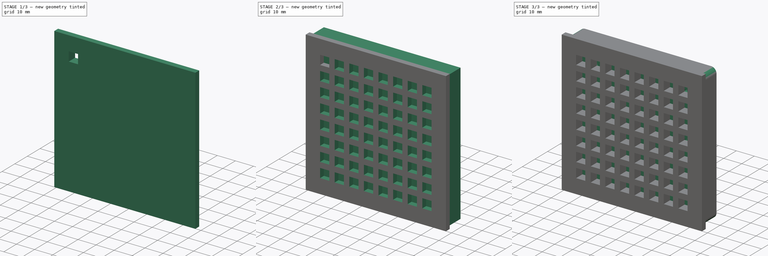
[diagram: build sequence overview — one tinted view per stage of 3, left to right]
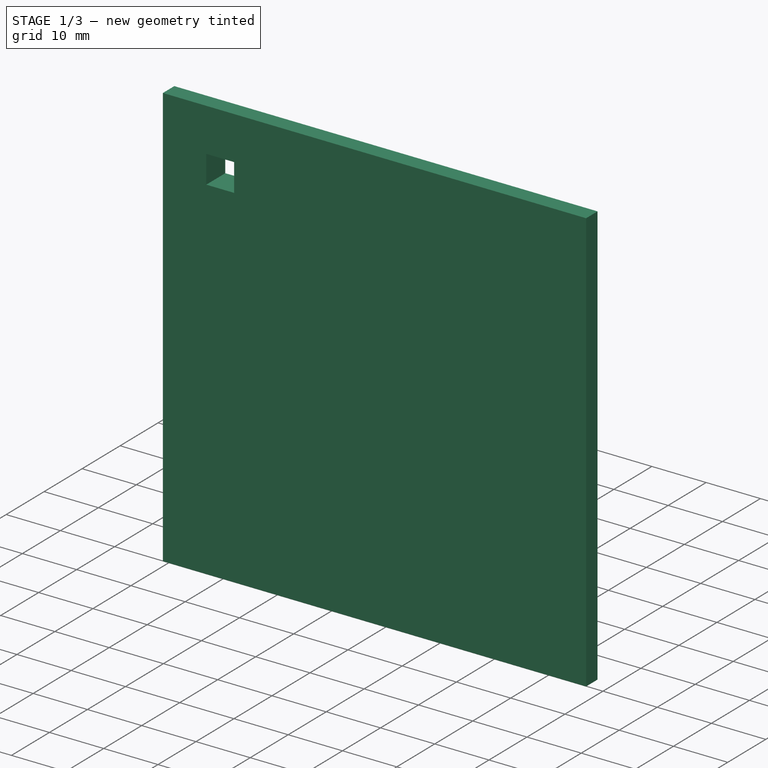
[diagram: stage 1 of 3 — iso view after this stage's code; geometry added in this stage tinted green]
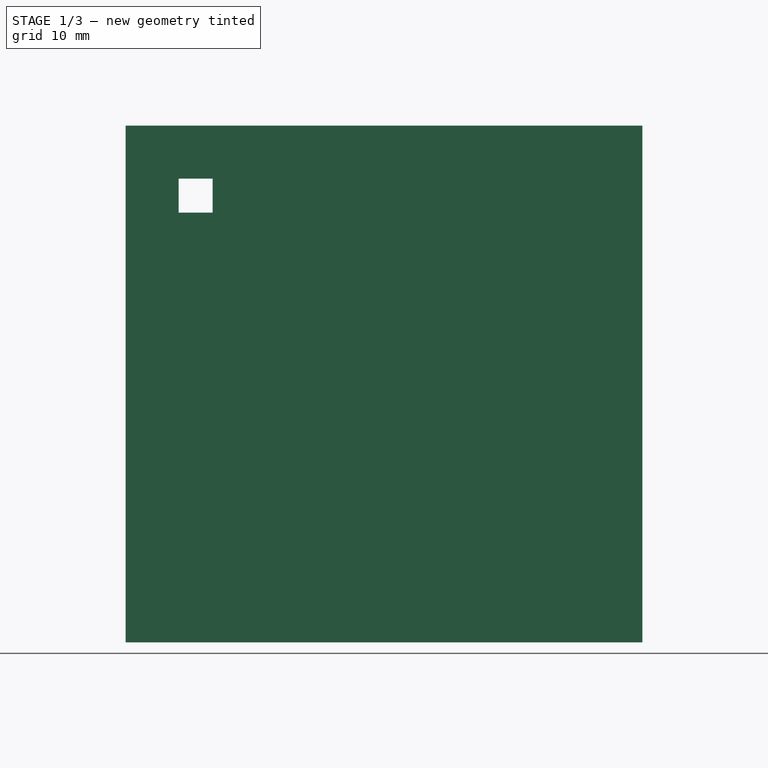
[diagram: stage 1 of 3 — front view after this stage's code; geometry added in this stage tinted green]
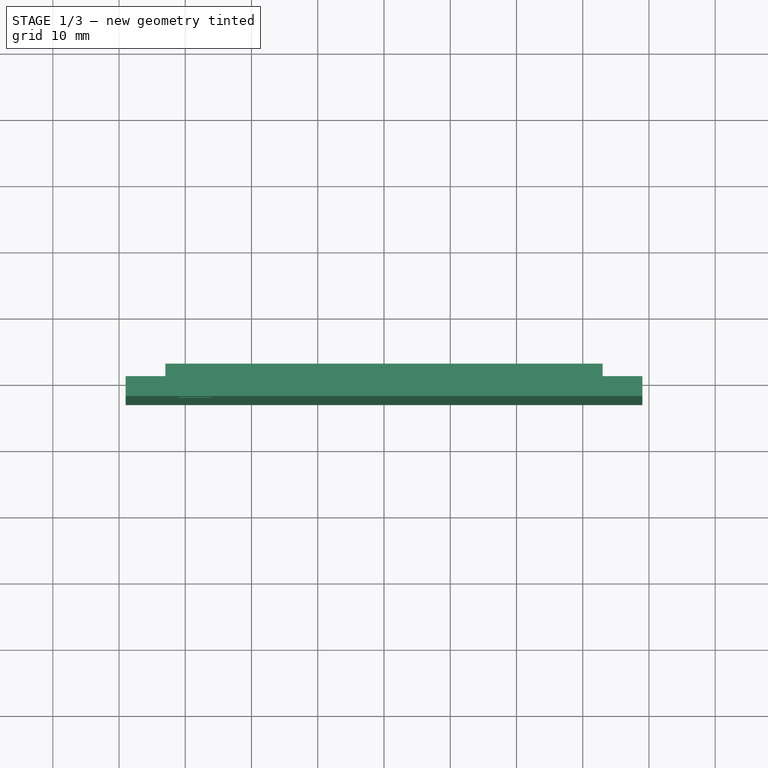
[diagram: stage 1 of 3 — top view after this stage's code; geometry added in this stage tinted green]
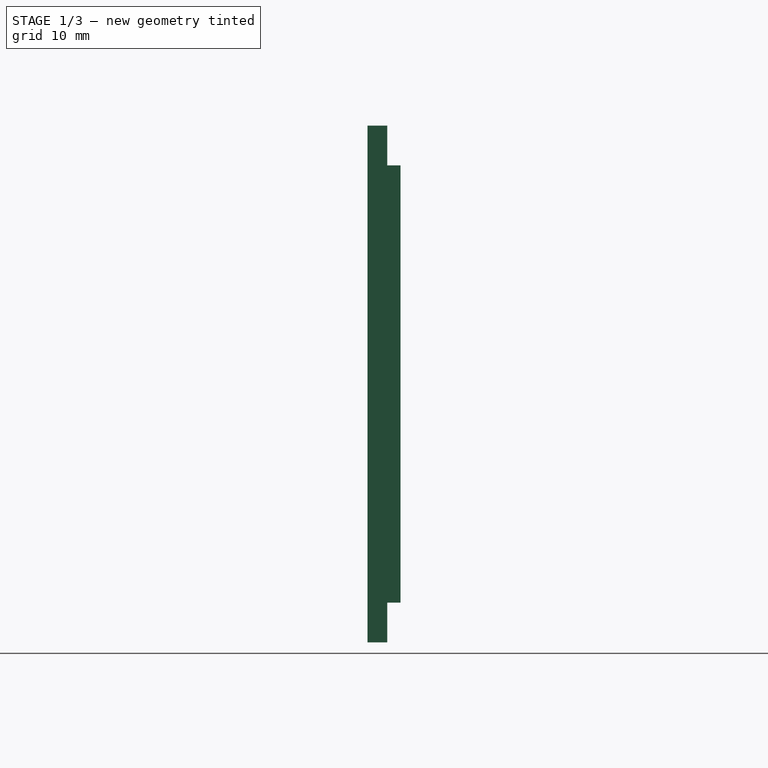
[diagram: stage 1 of 3 — right view after this stage's code; geometry added in this stage tinted green]
FCSTD DOCUMENT  (FreeCAD 0.19R24267 +99 (Git))
Label: proximity_warner
License: All rights reserved
LicenseURL: http://en.wikipedia.org/wiki/All_rights_reserved
objects: Sketcher::SketchObject×6, PartDesign::Pad×3, PartDesign::Pocket×3, PartDesign::Body×2, PartDesign::LinearPattern×2, PartDesign::Fillet×1, Spreadsheet::Sheet×1, PartDesign::MultiTransform×1
note: 25 computed .brp shape members not serialized (recipe doc carries the construction recipe); baked Part::Feature solids carry a one-line shape summary decoded from their .brp

FEATURE [PartDesign::Body] Body
  Group = -> [Sketch,Sketch001,Pad,Sketch002,Pocket,Pocket001,Fillet]
  Origin = -> Origin
  Tip = -> Fillet
FEATURE [Sketcher::SketchObject] Sketch003
  FullyConstrained = true
  MapMode = 5
  Placement = pos=(0,0,0) rot=(1,0,0;1.5708rad)
  Support = -> [XZ_Plane001]
  expr: Constraints[8] = <<Spreadsheet>>.matrix_width + <<Spreadsheet>>.case_thickness * 2
  expr: Constraints[10] = <<Spreadsheet>>.matrix_height + <<Spreadsheet>>.case_thickness * 2
  sketch-geometry (4):
    g0: LineSegment StartX=-39 StartY=39 StartZ=0 EndX=39 EndY=39 EndZ=0
    g1: LineSegment StartX=39 StartY=39 StartZ=0 EndX=39 EndY=-39 EndZ=0
    g2: LineSegment StartX=39 StartY=-39 StartZ=0 EndX=-39 EndY=-39 EndZ=0
    g3: LineSegment StartX=-39 StartY=-39 StartZ=0 EndX=-39 EndY=39 EndZ=0
  constraints (11):
    c: Coincident(g0,g1)
    c: Coincident(g1,g2)
    c: Coincident(g2,g3)
    c: Coincident(g3,g0)
    c: Horizontal(g0)
    c: Horizontal(g2)
    c: Vertical(g1)
    c: Vertical(g3)
    c: DistanceX(g0,g0) = 78
    c: Symmetric(g0,g1,g-1)
    c: DistanceY(g1,g1) = 78
FEATURE [Spreadsheet::Sheet] Spreadsheet
  cells = A2=matrix_height; B2(matrix_height)=66; A3=matrix_with; B3(matrix_width)=66; A4=matrix_gap; B4(matrix_gap)=3; A5=case_thickness; B5(case_thickness)=6; A6=border_radius; B6(border_radius)=3; A7=matrix_outer_boarder; B7(matrix_outer_boarder)=2; A8=led_column_count; B8(led_column_count)=8; A9=led_row_count; B9(led_row_count)=8; A10=led_with; B10(led_with)=5.13; A11=led_height; B11(led_height)=5.13; A12=led_depth; B12(led_depth)=2; A13=box_thickness; B13(box_thickness)=5; A14=mounting_holes_diameter; B14(mounting_holes_diameter)=2; A15=mounting_holes_left_border; B15(mounting_holes_left_border)=8; A16=mounting_holes_top_border; B16(mounting_holes_top_border)=2
FEATURE [PartDesign::Pad] Pad001
  Direction = (1,1,1)
  Length = 3
  Length2 = 100
  Placement = pos=(0,0,0) rot=(1,0,0;1.5708rad)
  Profile = -> Sketch003
  Refine = true
  Type = 0
FEATURE [Sketcher::SketchObject] Sketch005  label="sk_led_border"
  FullyConstrained = true
  MapMode = 5
  Placement = pos=(0,0,0) rot=(1,0,0;1.5708rad)
  Support = -> [XZ_Plane001]
  expr: Constraints[10] = <<Spreadsheet>>.matrix_height
  expr: Constraints[9] = <<Spreadsheet>>.matrix_width
  sketch-geometry (4):
    g0: LineSegment StartX=-33 StartY=33 StartZ=0 EndX=33 EndY=33 EndZ=0
    g1: LineSegment StartX=33 StartY=33 StartZ=0 EndX=33 EndY=-33 EndZ=0
    g2: LineSegment StartX=33 StartY=-33 StartZ=0 EndX=-33 EndY=-33 EndZ=0
    g3: LineSegment StartX=-33 StartY=-33 StartZ=0 EndX=-33 EndY=33 EndZ=0
  constraints (11):
    c: Coincident(g0,g1)
    c: Coincident(g1,g2)
    c: Coincident(g2,g3)
    c: Coincident(g3,g0)
    c: Horizontal(g0)
    c: Horizontal(g2)
    c: Vertical(g1)
    c: Vertical(g3)
    c: Symmetric(g0,g1,g-1)
    c: DistanceX(g0,g0) = 66
    c: DistanceY(g1,g1) = 66
FEATURE [Sketcher::SketchObject] Sketch004  label="sk_led_cutout"
  AttachmentOffset = pos=(0,0,3) rot=(0,0,1;0rad)
  ExternalGeometry = -> [Sketch005]
  FullyConstrained = true
  MapMode = 5
  Placement = pos=(0,-3,-7e-16) rot=(1,0,0;1.5708rad)
  Support = -> [XZ_Plane001]
  expr: Constraints[12] = <<Spreadsheet>>.led_height
  expr: Constraints[8] = <<Spreadsheet>>.led_with
  expr: Constraints[11] = <<Spreadsheet>>.matrix_outer_boarder
  expr: Constraints[9] = <<Spreadsheet>>.matrix_outer_boarder
  sketch-geometry (4):
    g0: LineSegment StartX=-31 StartY=31 StartZ=0 EndX=-25.87 EndY=31 EndZ=0
    g1: LineSegment StartX=-25.87 StartY=31 StartZ=0 EndX=-25.87 EndY=25.87 EndZ=0
    g2: LineSegment StartX=-25.87 StartY=25.87 StartZ=0 EndX=-31 EndY=25.87 EndZ=0
    g3: LineSegment StartX=-31 StartY=25.87 StartZ=0 EndX=-31 EndY=31 EndZ=0
  constraints (13):
    c: Coincident(g0,g1)
    c: Coincident(g1,g2)
    c: Coincident(g2,g3)
    c: Coincident(g3,g0)
    c: Horizontal(g0)
    c: Horizontal(g2)
    c: Vertical(g1)
    c: Vertical(g3)
    c: DistanceX(g0,g0) = 5.13
    c: DistanceX(g-4,g0) = 2
    c: Distance(g-4,g-3) = 66
    c: DistanceY(g0,g-4) = 2
    c: DistanceY(g1,g1) = 5.13
FEATURE [PartDesign::Pad] Pad002  label="pad_led_border"
  BaseFeature = -> Pad001
  Direction = (1,1,1)
  Length = 2
  Length2 = 100
  Placement = pos=(0,0,0) rot=(1,0,0;1.5708rad)
  Profile = -> Sketch005
  Refine = true
  Reversed = true
  Type = 0
  expr: Length = <<Spreadsheet>>.led_depth
FEATURE [PartDesign::Pocket] Pocket002  label="pocket_led_cutout"
  BaseFeature = -> Pad002
  Length = 5
  Length2 = 100
  Placement = pos=(0,0,0) rot=(1,0,0;1.5708rad)
  Profile = -> Sketch004
  Refine = true
  Type = 1
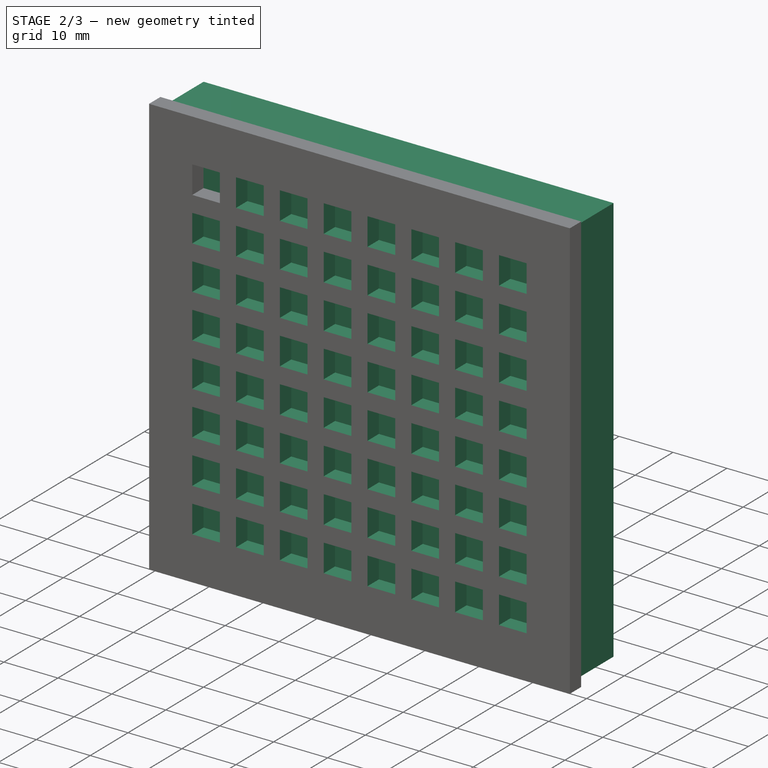
[diagram: stage 2 of 3 — iso view after this stage's code; geometry added in this stage tinted green]
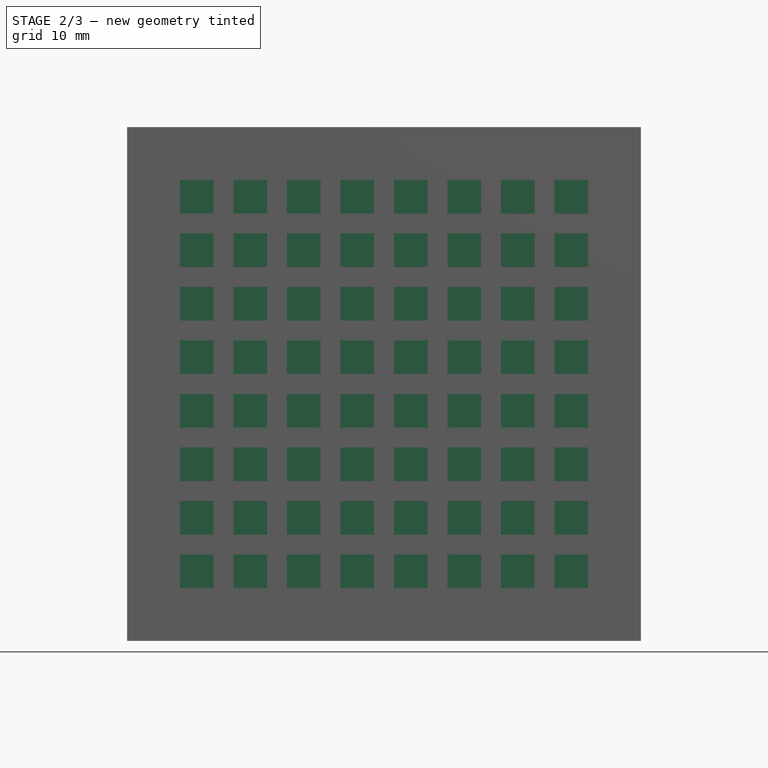
[diagram: stage 2 of 3 — front view after this stage's code; geometry added in this stage tinted green]
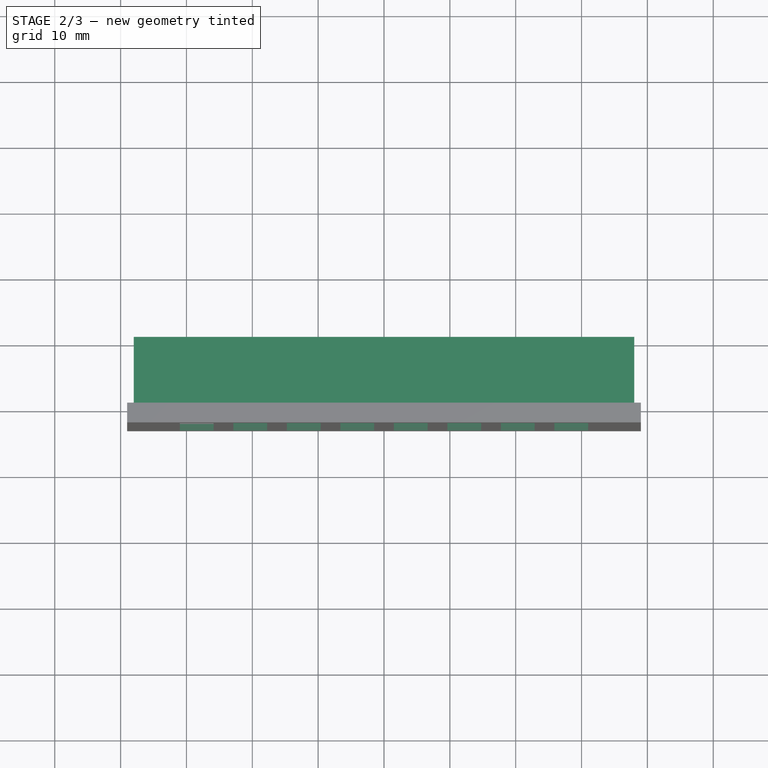
[diagram: stage 2 of 3 — top view after this stage's code; geometry added in this stage tinted green]
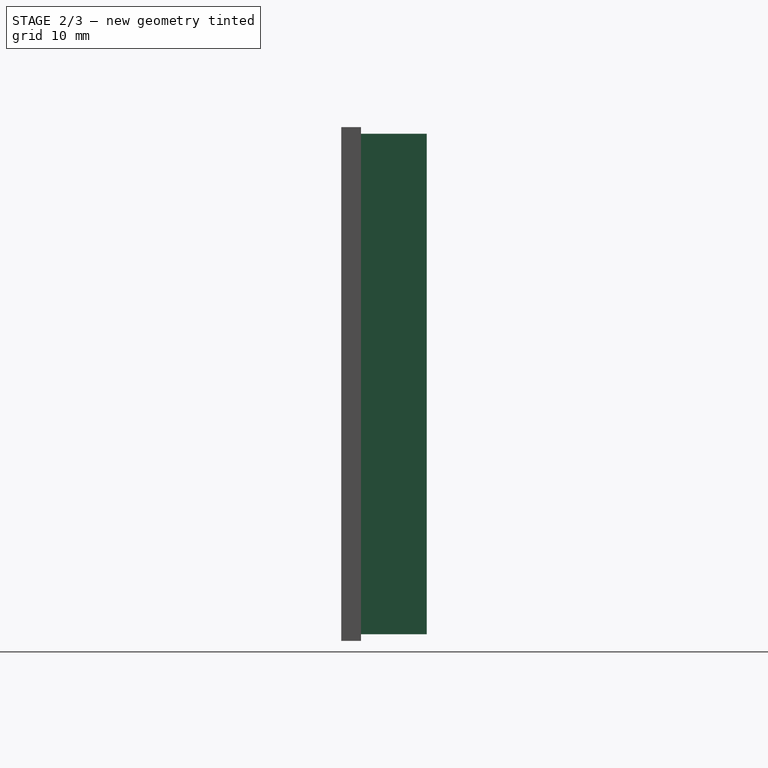
[diagram: stage 2 of 3 — right view after this stage's code; geometry added in this stage tinted green]
FEATURE [Sketcher::SketchObject] Sketch  label="sk_cutout"
  FullyConstrained = true
  MapMode = 5
  Placement = pos=(0,0,0) rot=(1,0,0;1.5708rad)
  Support = -> [XZ_Plane]
  expr: Constraints[8] = Spreadsheet.matrix_width
  expr: Constraints[9] = <<Spreadsheet>>.matrix_height
  sketch-geometry (4):
    g0: LineSegment StartX=-33 StartY=33 StartZ=0 EndX=33 EndY=33 EndZ=0
    g1: LineSegment StartX=33 StartY=33 StartZ=0 EndX=33 EndY=-33 EndZ=0
    g2: LineSegment StartX=33 StartY=-33 StartZ=0 EndX=-33 EndY=-33 EndZ=0
    g3: LineSegment StartX=-33 StartY=-33 StartZ=0 EndX=-33 EndY=33 EndZ=0
  constraints (11):
    c: Coincident(g0,g1)
    c: Coincident(g1,g2)
    c: Coincident(g2,g3)
    c: Coincident(g3,g0)
    c: Horizontal(g0)
    c: Horizontal(g2)
    c: Vertical(g1)
    c: Vertical(g3)
    c: DistanceX(g0,g0) = 66
    c: DistanceY(g1,g1) = 66
    c: Symmetric(g2,g0,g-1)
FEATURE [Sketcher::SketchObject] Sketch001  label="sk_holder"
  ExternalGeometry = -> [Sketch]
  FullyConstrained = true
  MapMode = 5
  Placement = pos=(0,0,0) rot=(1,0,0;1.5708rad)
  Support = -> [XZ_Plane]
  expr: Constraints[10] = <<Spreadsheet>>.box_thickness
  sketch-geometry (4):
    g0: LineSegment StartX=-38 StartY=38 StartZ=0 EndX=38 EndY=38 EndZ=0
    g1: LineSegment StartX=38 StartY=38 StartZ=0 EndX=38 EndY=-38 EndZ=0
    g2: LineSegment StartX=38 StartY=-38 StartZ=0 EndX=-38 EndY=-38 EndZ=0
    g3: LineSegment StartX=-38 StartY=-38 StartZ=0 EndX=-38 EndY=38 EndZ=0
  constraints (11):
    c: Coincident(g0,g1)
    c: Coincident(g1,g2)
    c: Coincident(g2,g3)
    c: Coincident(g3,g0)
    c: Horizontal(g0)
    c: Horizontal(g2)
    c: Vertical(g1)
    c: Vertical(g3)
    c: Symmetric(g0,g1,g-1)
    c: Equal(g0,g1)
    c: DistanceY(g-4,g0) = 5
FEATURE [PartDesign::Pad] Pad  label="pad_holder"
  Direction = (1,1,1)
  Length = 10
  Length2 = 100
  Placement = pos=(0,0,0) rot=(1,0,0;1.5708rad)
  Profile = -> Sketch001
  Refine = true
  Reversed = true
  Type = 0
FEATURE [PartDesign::LinearPattern] LinearPattern  label="lp_led_cutout_rows"
  Direction = -> Sketch004 [V_Axis]
  Length = 56.87
  Occurrences = 8
  Placement = pos=(0,0,0) rot=(1,0,0;1.5708rad)
  Refine = true
  Reversed = true
  expr: Length = <<Spreadsheet>>.matrix_height - <<Spreadsheet>>.matrix_outer_boarder * 2 - <<Spreadsheet>>.led_height
  expr: Occurrences = <<Spreadsheet>>.led_row_count
FEATURE [PartDesign::LinearPattern] LinearPattern001  label="lp_led_cutout_cols"
  Direction = -> Sketch004 [H_Axis]
  Length = 56.87
  Occurrences = 8
  Placement = pos=(0,0,0) rot=(1,0,0;1.5708rad)
  Refine = true
  expr: Length = <<Spreadsheet>>.matrix_width - <<Spreadsheet>>.matrix_outer_boarder * 2 - <<Spreadsheet>>.led_with
FEATURE [PartDesign::MultiTransform] MultiTransform  label="mt_led_cutout"
  BaseFeature = -> Pocket002
  Originals = -> [Pocket002]
  Placement = pos=(0,0,0) rot=(1,0,0;1.5708rad)
  Refine = true
  Transformations = -> [LinearPattern,LinearPattern001]
FEATURE [PartDesign::Body] Body001
  Group = -> [Sketch003,Pad001,Sketch004,Sketch005,Pad002,Pocket002,MultiTransform,LinearPattern,LinearPattern001]
  Origin = -> Origin001
  Placement = pos=(0,-26,0) rot=(0,0,1;0rad)
  Tip = -> MultiTransform
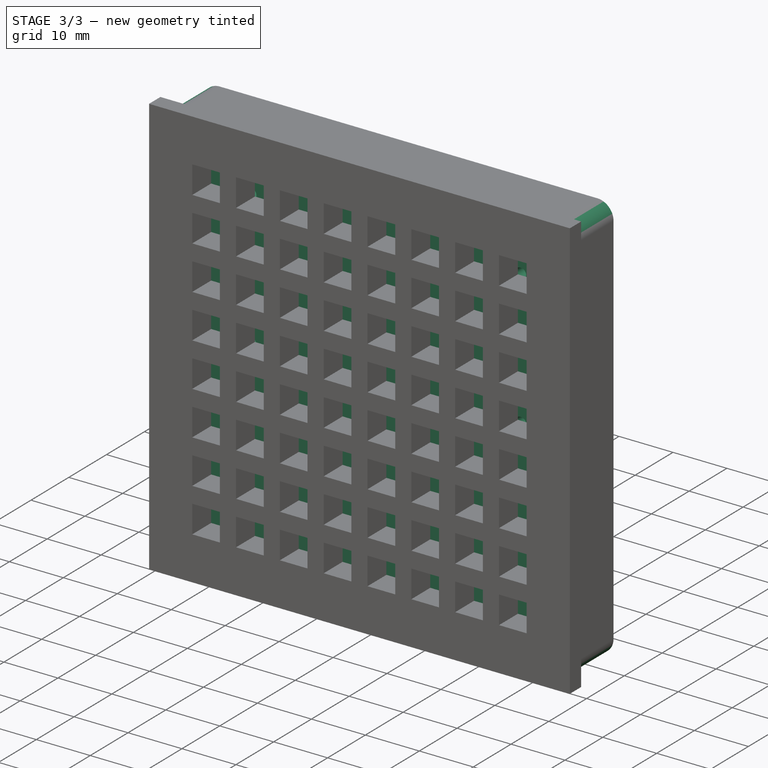
[diagram: stage 3 of 3 — iso view after this stage's code; geometry added in this stage tinted green]
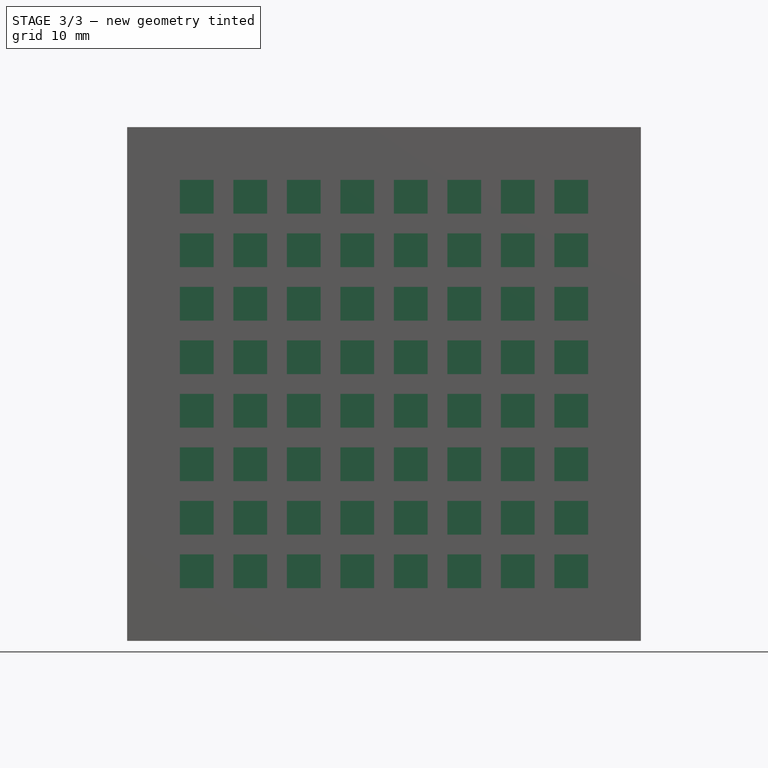
[diagram: stage 3 of 3 — front view after this stage's code; geometry added in this stage tinted green]
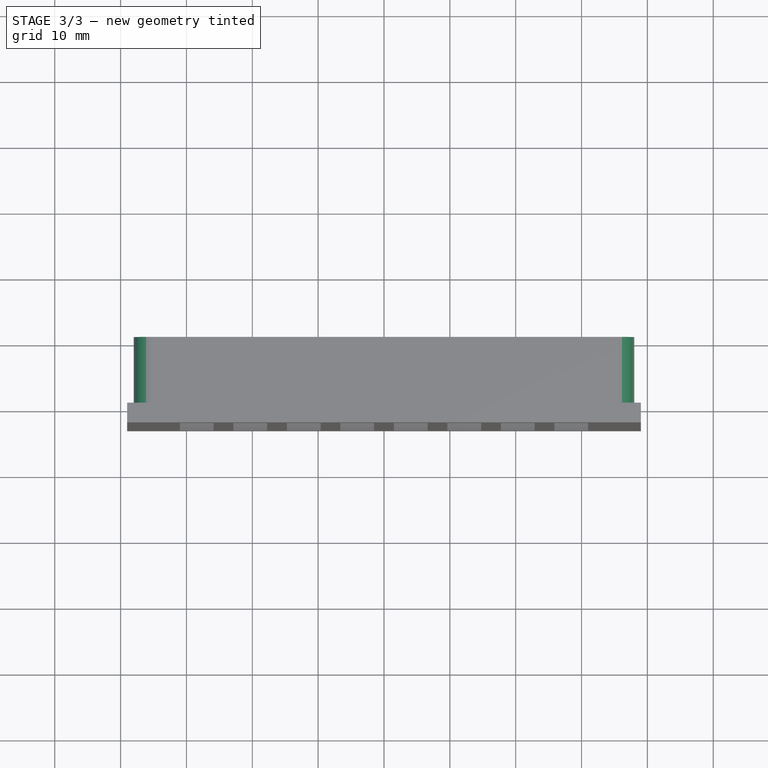
[diagram: stage 3 of 3 — top view after this stage's code; geometry added in this stage tinted green]
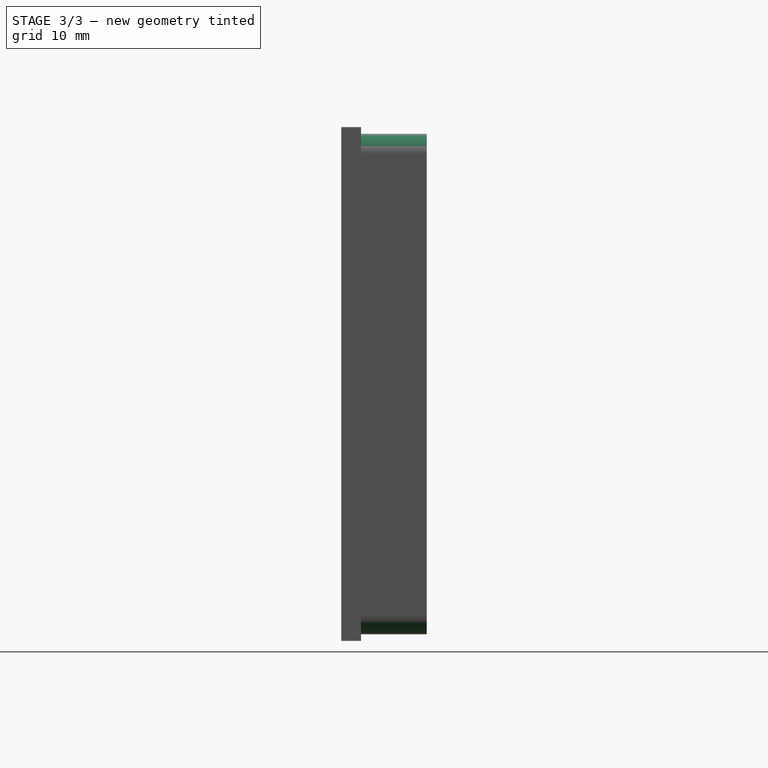
[diagram: stage 3 of 3 — right view after this stage's code; geometry added in this stage tinted green]
FEATURE [Sketcher::SketchObject] Sketch002  label="sk_mounting_holes"
  ExternalGeometry = -> [Sketch]
  FullyConstrained = true
  MapMode = 5
  Placement = pos=(0,0,0) rot=(1,0,0;1.5708rad)
  Support = -> [XZ_Plane]
  expr: Constraints[23] = <<Spreadsheet>>.mounting_holes_left_border
  expr: Constraints[0] = <<Spreadsheet>>.mounting_holes_diameter
  sketch-geometry (10):
    g0: Circle CenterX=-25 CenterY=25 CenterZ=0 NormalX=0 NormalY=0 NormalZ=1 AngleXU=0 Radius=1
    g1: Circle CenterX=25 CenterY=25 CenterZ=0 NormalX=0 NormalY=0 NormalZ=1 AngleXU=0 Radius=1
    g2: Circle CenterX=25 CenterY=-25 CenterZ=0 NormalX=0 NormalY=0 NormalZ=1 AngleXU=0 Radius=1
    g3: Circle CenterX=-25 CenterY=-25 CenterZ=0 NormalX=0 NormalY=0 NormalZ=1 AngleXU=0 Radius=1
    g4: Circle CenterX=-25 CenterY=0 CenterZ=0 NormalX=0 NormalY=0 NormalZ=1 AngleXU=0 Radius=1
    g5: Circle CenterX=25 CenterY=0 CenterZ=0 NormalX=0 NormalY=0 NormalZ=1 AngleXU=0 Radius=1
    g6: LineSegment StartX=-25 StartY=25 StartZ=0 EndX=-25 EndY=-25 EndZ=0
    g7: LineSegment StartX=25 StartY=-25 StartZ=0 EndX=25 EndY=25 EndZ=0
    g8: LineSegment StartX=-25 StartY=-25 StartZ=0 EndX=25 EndY=-25 EndZ=0
    g9: LineSegment StartX=-25 StartY=25 StartZ=0 EndX=25 EndY=25 EndZ=0
  constraints (24):
    c: Diameter(g0) = 2
    c: PointOnObject(g4,g-1)
    c: PointOnObject(g5,g-1)
    c: Coincident(g6,g0)
    c: Coincident(g6,g3)
    c: Coincident(g7,g2)
    c: Coincident(g7,g1)
    c: Vertical(g7)
    c: Coincident(g8,g3)
    c: Coincident(g8,g2)
    c: PointOnObject(g5,g7)
    c: PointOnObject(g4,g6)
    c: Symmetric(g3,g2,g-2)
    c: Coincident(g9,g0)
    c: Coincident(g9,g1)
    c: Horizontal(g9)
    c: Symmetric(g0,g3,g-1)
    c: Equal(g9,g6)
    c: Equal(g0,g1)
    c: Equal(g1,g2)
    c: Equal(g2,g3)
    c: Equal(g3,g4)
    c: Equal(g4,g5)
    c: DistanceX(g-4,g0) = 8
FEATURE [PartDesign::Pocket] Pocket  label="pocket_cutout"
  BaseFeature = -> Pad
  Length = 4
  Length2 = 100
  Placement = pos=(0,0,0) rot=(1,0,0;1.5708rad)
  Profile = -> Sketch
  Refine = true
  Type = 0
FEATURE [PartDesign::Pocket] Pocket001  label="pocket_mounting_holes"
  BaseFeature = -> Pocket
  Length = 5
  Length2 = 100
  Placement = pos=(0,0,0) rot=(1,0,0;1.5708rad)
  Profile = -> Sketch002
  Refine = true
  Type = 1
FEATURE [PartDesign::Fillet] Fillet  label="fillet_outer_border"
  Base = -> Pocket001 [Edge1,Edge5,Edge2,Edge8]
  BaseFeature = -> Pocket001
  Placement = pos=(0,0,0) rot=(1,0,0;1.5708rad)
  Radius = 3
  Refine = true
  SupportTransform = false
  expr: Radius = <<Spreadsheet>>.border_radius
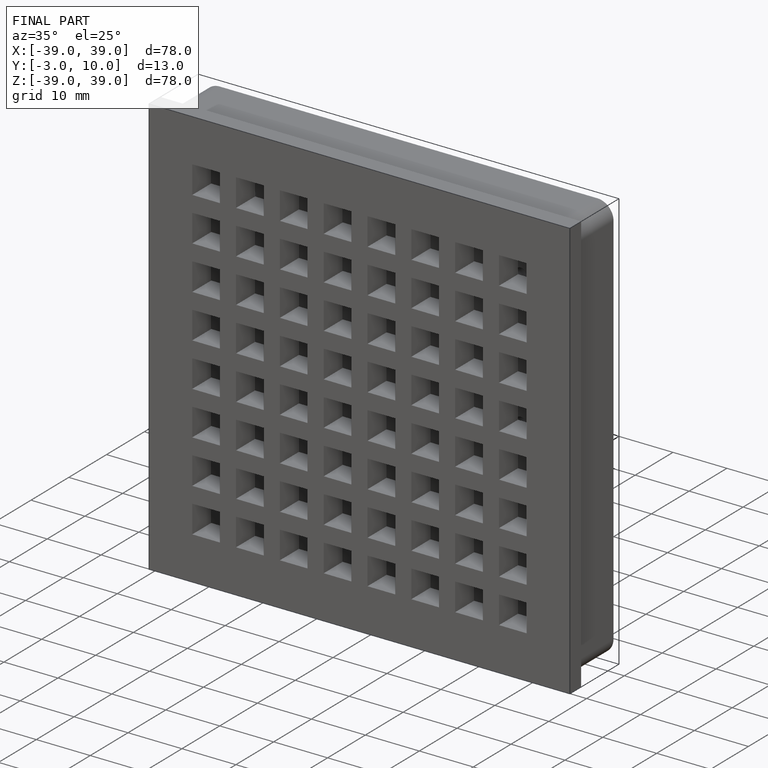
[diagram: finished part — iso view with bounding-box wireframe]
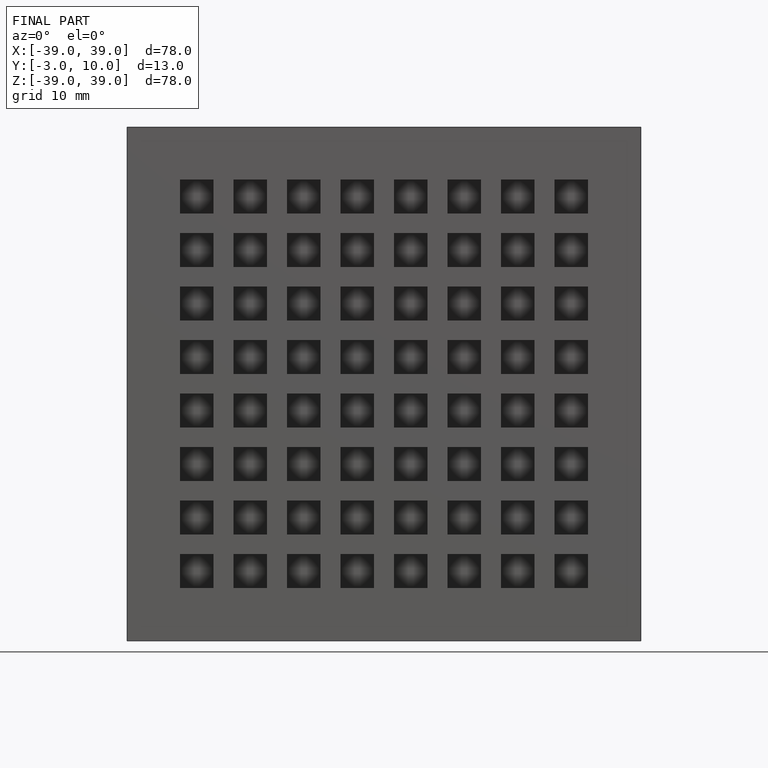
[diagram: finished part — front view with bounding-box wireframe]
